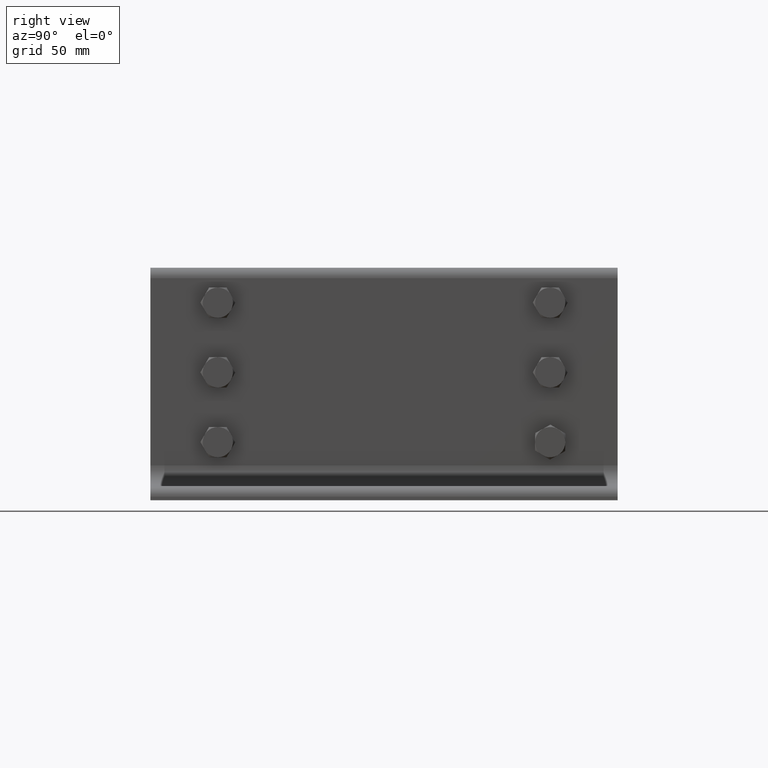
[diagram: clean part render]
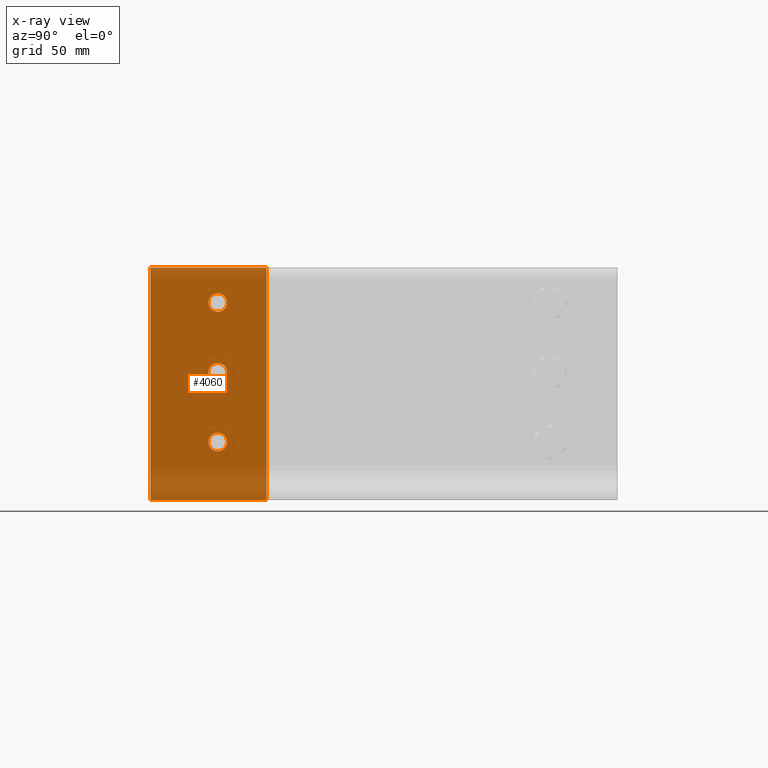
[diagram: x-ray — body ghosted, one internal face saturated and labeled with its STEP entity id]
A machine part, right view, then the same camera in x-ray: the body is ghosted and one INTERNAL B-rep face — a face not visible from any outside direction — is saturated and labeled: STEP entity #4060.
In plain terms, the highlighted planar face has unit normal (1, -0, 0).
Its self-contained STEP definition (entity closure, byte-faithful):
#3816=CARTESIAN_POINT('',(38.999999999999993,0.0,3.999999999999997));
#3817=VERTEX_POINT('',#3816);
#3818=CARTESIAN_POINT('',(34.999999999999993,0.0,3.999999999999997));
#3819=DIRECTION('',(0.0,1.0,0.0));
#3820=DIRECTION('',(-1.0,0.0,0.0));
#3821=AXIS2_PLACEMENT_3D('',#3818,#3819,#3820);
#3822=CIRCLE('',#3821,4.0);
#3823=EDGE_CURVE('',#3817,#3817,#3822,.T.);
#3844=CARTESIAN_POINT('',(8.999999999999995,0.0,4.000000000000006));
#3845=VERTEX_POINT('',#3844);
#3846=CARTESIAN_POINT('',(4.999999999999996,0.0,4.000000000000007));
#3847=DIRECTION('',(0.0,1.0,0.0));
#3848=DIRECTION('',(-1.0,0.0,0.0));
#3849=AXIS2_PLACEMENT_3D('',#3846,#3847,#3848);
#3850=CIRCLE('',#3849,4.0);
#3851=EDGE_CURVE('',#3845,#3845,#3850,.T.);
#3872=CARTESIAN_POINT('',(-21.000000000000007,0.0,4.000000000000016));
#3873=VERTEX_POINT('',#3872);
#3874=CARTESIAN_POINT('',(-25.000000000000004,0.0,4.000000000000016));
#3875=DIRECTION('',(0.0,1.0,0.0));
#3876=DIRECTION('',(-1.0,0.0,0.0));
#3877=AXIS2_PLACEMENT_3D('',#3874,#3875,#3876);
#3878=CIRCLE('',#3877,4.0);
#3879=EDGE_CURVE('',#3873,#3873,#3878,.T.);
#3900=CARTESIAN_POINT('',(-50.0,0.0,25.000000000000028));
#3901=VERTEX_POINT('',#3900);
#3902=CARTESIAN_POINT('',(-50.0,0.0,-24.999999999999996));
#3903=VERTEX_POINT('',#3902);
#3904=CARTESIAN_POINT('',(-50.0,0.0,25.000000000000028));
#3905=DIRECTION('',(0.0,0.0,-1.0));
#3906=VECTOR('',#3905,50.000000000000014);
#3907=LINE('',#3904,#3906);
#3908=EDGE_CURVE('',#3901,#3903,#3907,.T.);
#3940=CARTESIAN_POINT('',(50.0,0.0,-24.999999999999996));
#3941=VERTEX_POINT('',#3940);
#3942=CARTESIAN_POINT('',(-50.0,0.0,-24.999999999999996));
#3943=DIRECTION('',(1.0,0.0,0.0));
#3944=VECTOR('',#3943,100.0);
#3945=LINE('',#3942,#3944);
#3946=EDGE_CURVE('',#3903,#3941,#3945,.T.);
#3971=CARTESIAN_POINT('',(50.0,0.0,24.999999999999996));
#3972=VERTEX_POINT('',#3971);
#3973=CARTESIAN_POINT('',(50.0,0.0,-24.999999999999996));
#3974=DIRECTION('',(0.0,0.0,1.0));
#3975=VECTOR('',#3974,49.999999999999993);
#3976=LINE('',#3973,#3975);
#3977=EDGE_CURVE('',#3941,#3972,#3976,.T.);
#4002=CARTESIAN_POINT('',(50.0,0.0,24.999999999999996));
#4003=DIRECTION('',(-1.0,0.0,0.0));
#4004=VECTOR('',#4003,100.0);
#4005=LINE('',#4002,#4004);
#4006=EDGE_CURVE('',#3972,#3901,#4005,.T.);
#4040=CARTESIAN_POINT('',(-3.552714E-015,0.0,7.105427E-015));
#4041=DIRECTION('',(0.0,1.0,0.0));
#4042=DIRECTION('',(0.0,0.0,1.0));
#4043=AXIS2_PLACEMENT_3D('',#4040,#4041,#4042);
#4044=PLANE('',#4043);
#4045=ORIENTED_EDGE('',*,*,#4006,.T.);
#4046=ORIENTED_EDGE('',*,*,#3908,.T.);
#4047=ORIENTED_EDGE('',*,*,#3946,.T.);
#4048=ORIENTED_EDGE('',*,*,#3977,.T.);
#4049=EDGE_LOOP('',(#4045,#4046,#4047,#4048));
#4050=FACE_OUTER_BOUND('',#4049,.T.);
#4051=ORIENTED_EDGE('',*,*,#3823,.T.);
#4052=EDGE_LOOP('',(#4051));
#4053=FACE_BOUND('',#4052,.T.);
#4054=ORIENTED_EDGE('',*,*,#3851,.T.);
#4055=EDGE_LOOP('',(#4054));
#4056=FACE_BOUND('',#4055,.T.);
#4057=ORIENTED_EDGE('',*,*,#3879,.T.);
#4058=EDGE_LOOP('',(#4057));
#4059=FACE_BOUND('',#4058,.T.);
#4060=ADVANCED_FACE('',(#4050,#4053,#4056,#4059),#4044,.F.);